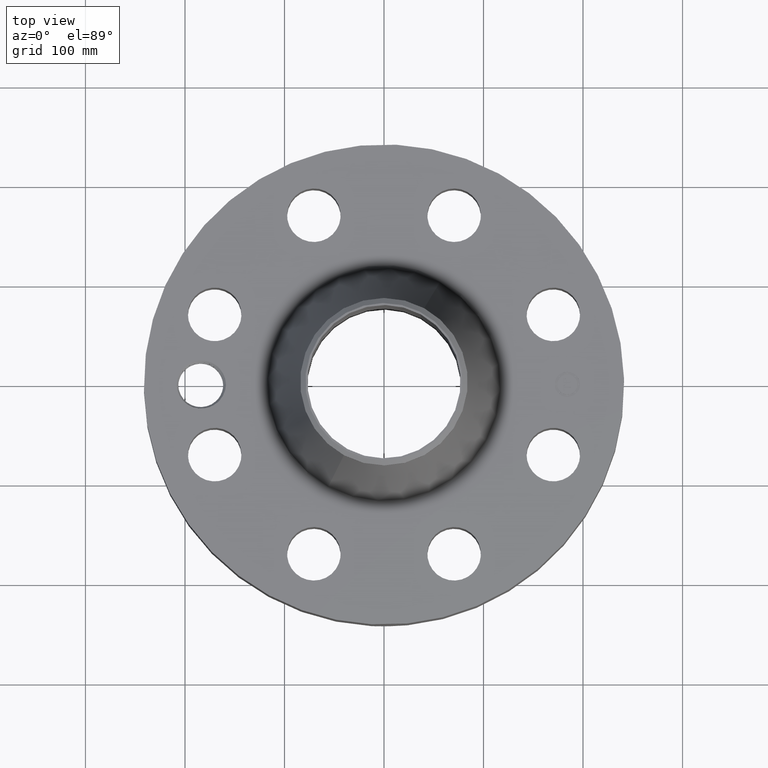
[diagram: clean part render]
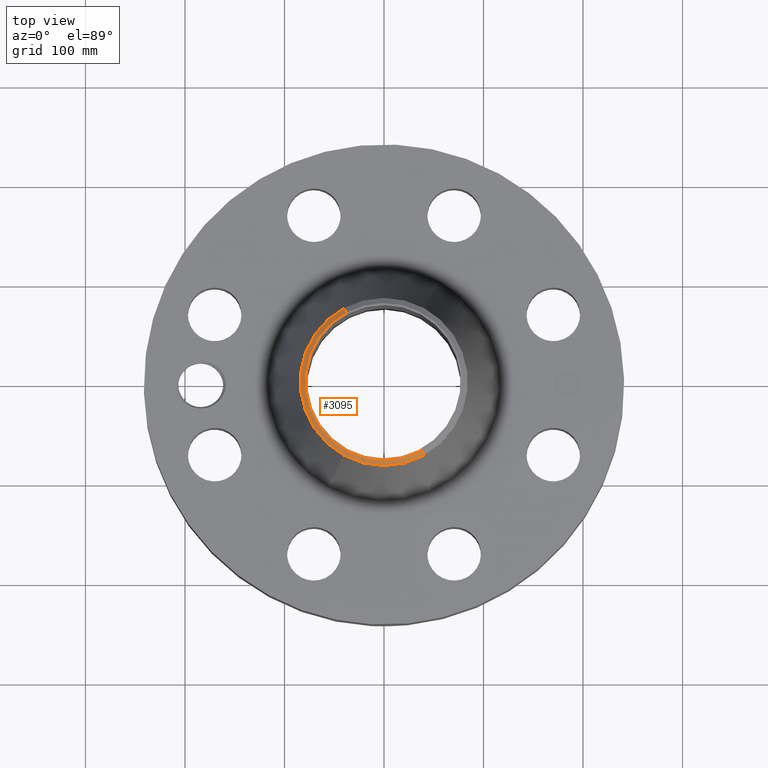
[diagram: same view with one face highlighted and labeled with its STEP entity id]
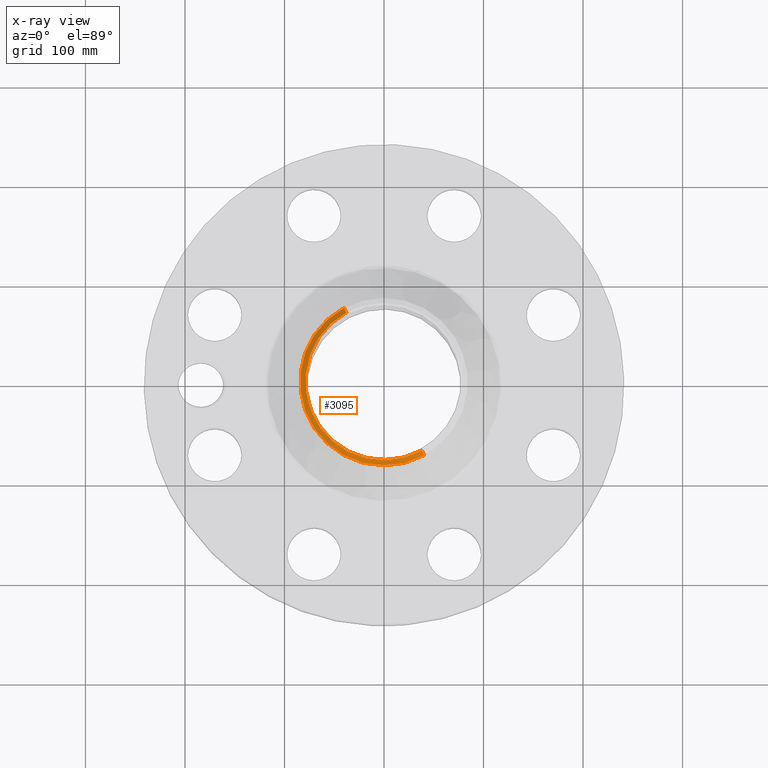
[diagram: x-ray of the same camera — body ghosted, the highlighted face saturated]
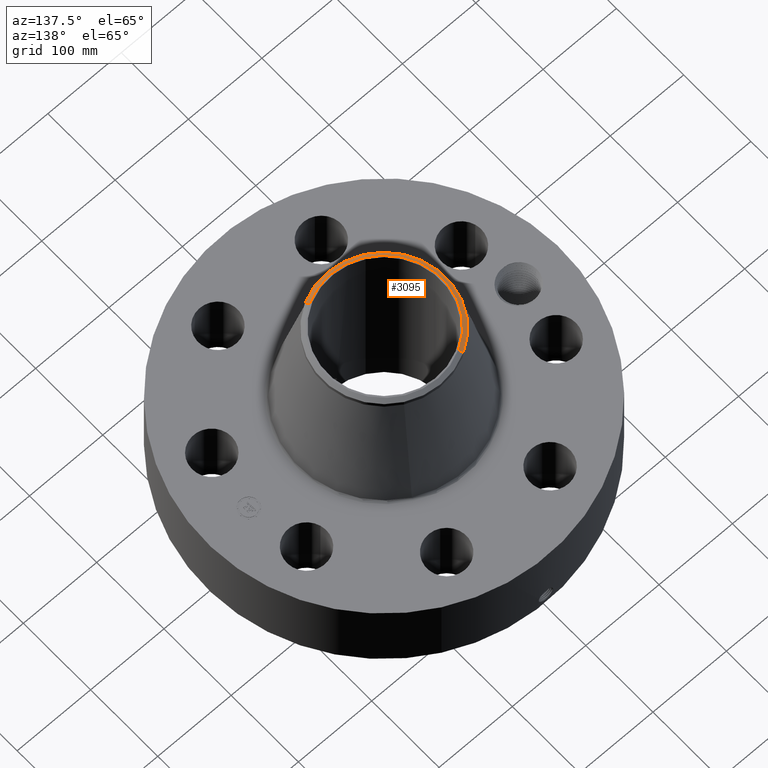
[diagram: same view with one face highlighted and labeled with its STEP entity id]
A machine part, top view. The second image highlights one B-rep face of the part: STEP entity #3095.
The next image is the same camera in x-ray: the body ghosted, the highlighted face saturated — about 0% of this face is hidden behind the body in this view.
A second angle (auxiliary view) of the same face is appended — the face is thin or edge-on in the first view.
In plain terms, the highlighted conical surface has half-angle 52.5 deg.
Its self-contained STEP definition (entity closure, byte-faithful):
#2221=AXIS2_PLACEMENT_3D('Circle Axis2P3D',#2219,#2220,$) ;
#3060=AXIS2_PLACEMENT_3D('Cone Axis2P3D',#3057,#3058,#3059) ;
#3078=AXIS2_PLACEMENT_3D('Circle Axis2P3D',#3076,#3077,$) ;
#3085=AXIS2_PLACEMENT_3D('Circle Axis2P3D',#3083,#3084,$) ;
#2214=CARTESIAN_POINT('Vertex',(1.49160798823,-2.73037010807,11.)) ;
#2216=CARTESIAN_POINT('Vertex',(-1.49160798823,2.73037010807,11.)) ;
#2219=CARTESIAN_POINT('Axis2P3D Location',(0.,0.,11.)) ;
#3057=CARTESIAN_POINT('Axis2P3D Location',(0.,0.,11.)) ;
#3062=CARTESIAN_POINT('Line Origine',(1.54045182436,-2.81977815037,10.9218247869)) ;
#3066=CARTESIAN_POINT('Vertex',(1.58929566048,-2.90918619268,10.8436495738)) ;
#3069=CARTESIAN_POINT('Line Origine',(-1.54045182436,2.81977815037,10.9218247869)) ;
#3073=CARTESIAN_POINT('Vertex',(-1.58929566048,2.90918619268,10.8436495738)) ;
#3076=CARTESIAN_POINT('Axis2P3D Location',(0.,0.,10.8436495738)) ;
#3080=CARTESIAN_POINT('Vertex',(-1.58929566048,-2.90918619268,10.8436495738)) ;
#3083=CARTESIAN_POINT('Axis2P3D Location',(0.,0.,10.8436495738)) ;
#2220=DIRECTION('Axis2P3D Direction',(0.,0.,-0.0393700787402)) ;
#3058=DIRECTION('Axis2P3D Direction',(-0.,-0.,-0.0393700787402)) ;
#3059=DIRECTION('Axis2P3D XDirection',(-0.0188750212049,0.0345504945626,0.)) ;
#3063=DIRECTION('Vector Direction',(0.014974561121,-0.02741075027,-0.023966985394)) ;
#3070=DIRECTION('Vector Direction',(-0.014974561121,0.02741075027,-0.023966985394)) ;
#3077=DIRECTION('Axis2P3D Direction',(0.,0.,-0.0393700787402)) ;
#3084=DIRECTION('Axis2P3D Direction',(0.,0.,-0.0393700787402)) ;
#3064=VECTOR('Line Direction',#3063,0.0393700787402) ;
#3071=VECTOR('Line Direction',#3070,0.0393700787402) ;
#3089=ORIENTED_EDGE('',*,*,#3068,.F.) ;
#3090=ORIENTED_EDGE('',*,*,#2223,.F.) ;
#3091=ORIENTED_EDGE('',*,*,#3075,.T.) ;
#3092=ORIENTED_EDGE('',*,*,#3082,.T.) ;
#3093=ORIENTED_EDGE('',*,*,#3087,.F.) ;
#3095=ADVANCED_FACE('PartBody',(#3094),#3061,.T.) ;
#2222=CIRCLE('generated circle',#2221,3.11124015749) ;
#3079=CIRCLE('generated circle',#3078,3.31500000001) ;
#3086=CIRCLE('generated circle',#3085,3.31500000001) ;
#3061=CONICAL_SURFACE('Cone',#3060,3.11124015749,0.916297857297) ;
#2223=EDGE_CURVE('',#2217,#2215,#2222,.F.) ;
#3068=EDGE_CURVE('',#2215,#3067,#3065,.T.) ;
#3075=EDGE_CURVE('',#2217,#3074,#3072,.T.) ;
#3082=EDGE_CURVE('',#3074,#3081,#3079,.F.) ;
#3087=EDGE_CURVE('',#3067,#3081,#3086,.T.) ;
#3088=EDGE_LOOP('',(#3089,#3090,#3091,#3092,#3093)) ;
#3094=FACE_OUTER_BOUND('',#3088,.T.) ;
#3065=LINE('Line',#3062,#3064) ;
#3072=LINE('Line',#3069,#3071) ;
#2215=VERTEX_POINT('',#2214) ;
#2217=VERTEX_POINT('',#2216) ;
#3067=VERTEX_POINT('',#3066) ;
#3074=VERTEX_POINT('',#3073) ;
#3081=VERTEX_POINT('',#3080) ;